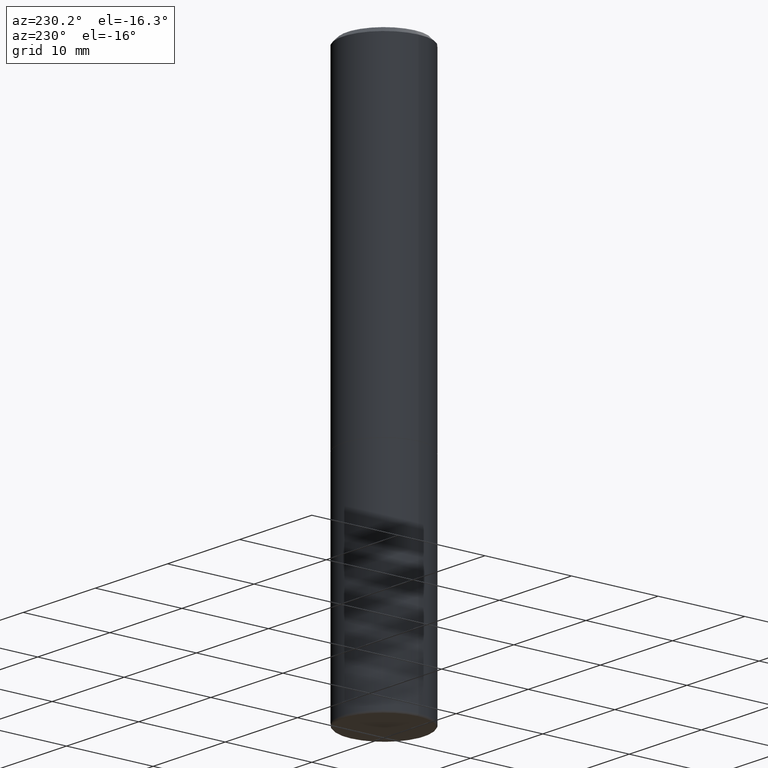
[diagram: clean part render]
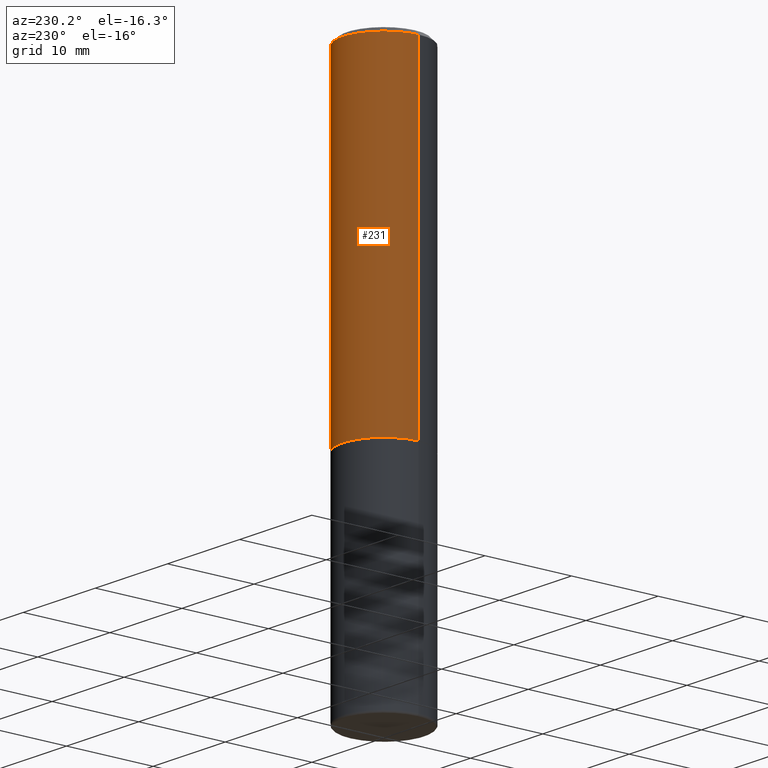
[diagram: same view with one face highlighted and labeled with its STEP entity id]
A machine part, auxiliary view. The second image highlights one B-rep face of the part: STEP entity #231.
In plain terms, the highlighted cylindrical surface (partial cylindrical patch) has radius 4.7625 mm, axis along (-0, 0, 1).
Its self-contained STEP definition (entity closure, byte-faithful):
#20 = VERTEX_POINT ( 'NONE', #304 ) ;
#48 = DIRECTION ( 'NONE',  ( -2.445468806185136597E-29, 3.491481338843145583E-15, 1.000000000000000000 ) ) ;
#58 = VERTEX_POINT ( 'NONE', #471 ) ;
#60 = DIRECTION ( 'NONE',  ( -2.445468806185136877E-29, 3.491481338843145188E-15, 1.000000000000000000 ) ) ;
#64 = VERTEX_POINT ( 'NONE', #139 ) ;
#77 = AXIS2_PLACEMENT_3D ( 'NONE', #136, #288, #138 ) ;
#79 = ORIENTED_EDGE ( 'NONE', *, *, #333, .F. ) ;
#84 = VECTOR ( 'NONE', #312, 39.37007874015748143 ) ;
#96 = LINE ( 'NONE', #315, #84 ) ;
#130 = EDGE_LOOP ( 'NONE', ( #403, #256, #134, #79 ) ) ;
#134 = ORIENTED_EDGE ( 'NONE', *, *, #451, .F. ) ;
#136 = CARTESIAN_POINT ( 'NONE',  ( 3.665757740471519853E-29, -5.233730526925875958E-15, -1.499000000000000110 ) ) ;
#138 = DIRECTION ( 'NONE',  ( 1.000000000000000000, -6.982962677686264344E-15, 0.000000000000000000 ) ) ;
#139 = CARTESIAN_POINT ( 'NONE',  ( 0.1874999999999996947, -6.543036028992048600E-15, -1.499000000000000110 ) ) ;
#197 = FACE_OUTER_BOUND ( 'NONE', #130, .T. ) ;
#231 = ADVANCED_FACE ( 'NONE', ( #197 ), #453, .T. ) ;
#255 = DIRECTION ( 'NONE',  ( -2.445468806185136597E-29, 3.491481338843145583E-15, 1.000000000000000000 ) ) ;
#256 = ORIENTED_EDGE ( 'NONE', *, *, #339, .T. ) ;
#267 = CIRCLE ( 'NONE', #400, 0.1874999999999995004 ) ;
#288 = DIRECTION ( 'NONE',  ( -2.445468806185136597E-29, 3.491481338843145583E-15, 1.000000000000000000 ) ) ;
#289 = CIRCLE ( 'NONE', #77, 0.1874999999999996947 ) ;
#304 = CARTESIAN_POINT ( 'NONE',  ( -0.1874999999999995004, 1.239475875289308357E-15, -0.02000000000000011144 ) ) ;
#308 = AXIS2_PLACEMENT_3D ( 'NONE', #318, #48, #410 ) ;
#312 = DIRECTION ( 'NONE',  ( -2.445468806185136877E-29, 3.491481338843145188E-15, 1.000000000000000000 ) ) ;
#315 = CARTESIAN_POINT ( 'NONE',  ( -0.1874999999999996114, 1.332267629550185087E-15, -9.223003294227929774E-30 ) ) ;
#318 = CARTESIAN_POINT ( 'NONE',  ( 0.000000000000000000, 0.000000000000000000, 0.000000000000000000 ) ) ;
#328 = VERTEX_POINT ( 'NONE', #473 ) ;
#333 = EDGE_CURVE ( 'NONE', #64, #58, #475, .T. ) ;
#339 = EDGE_CURVE ( 'NONE', #328, #20, #96, .T. ) ;
#396 = DIRECTION ( 'NONE',  ( 1.000000000000000000, -6.982962677686267499E-15, 0.000000000000000000 ) ) ;
#400 = AXIS2_PLACEMENT_3D ( 'NONE', #435, #255, #396 ) ;
#403 = ORIENTED_EDGE ( 'NONE', *, *, #425, .T. ) ;
#410 = DIRECTION ( 'NONE',  ( 1.000000000000000000, -6.982962677686267499E-15, 4.876176775795935232E-29 ) ) ;
#425 = EDGE_CURVE ( 'NONE', #64, #328, #289, .T. ) ;
#429 = CARTESIAN_POINT ( 'NONE',  ( 0.1874999999999996114, -1.309305502066172444E-15, 9.142831454617359993E-30 ) ) ;
#434 = VECTOR ( 'NONE', #60, 39.37007874015748143 ) ;
#435 = CARTESIAN_POINT ( 'NONE',  ( 4.890937612370301184E-31, -6.982962677686329819E-17, -0.02000000000000011144 ) ) ;
#451 = EDGE_CURVE ( 'NONE', #58, #20, #267, .T. ) ;
#453 = CYLINDRICAL_SURFACE ( 'NONE', #308, 0.1874999999999996114 ) ;
#471 = CARTESIAN_POINT ( 'NONE',  ( 0.1874999999999995004, -1.356173001359022113E-15, -0.02000000000000011144 ) ) ;
#473 = CARTESIAN_POINT ( 'NONE',  ( -0.1874999999999996669, -1.319512447301182766E-15, -1.499000000000000110 ) ) ;
#475 = LINE ( 'NONE', #429, #434 ) ;